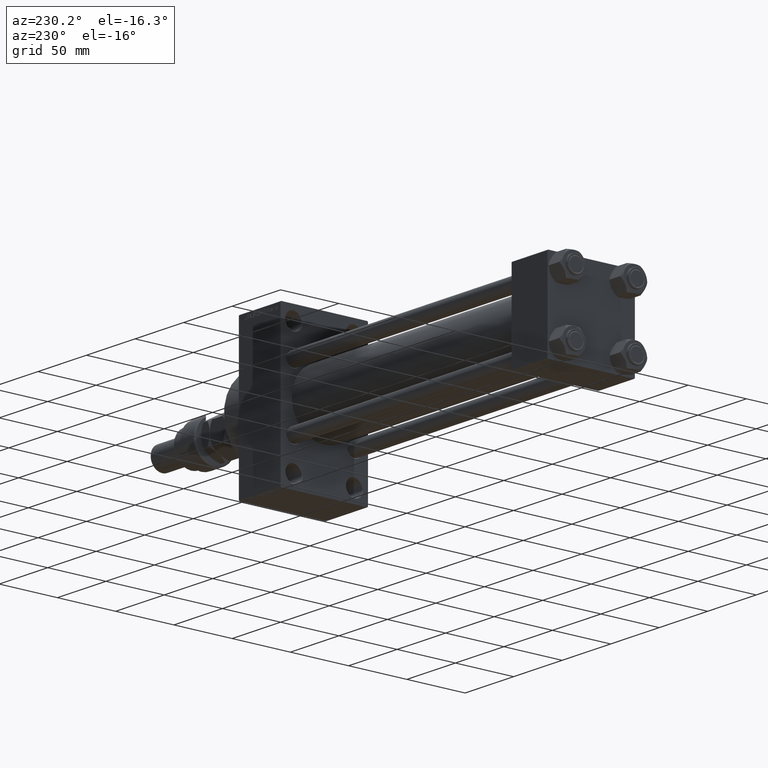
[diagram: clean part render]
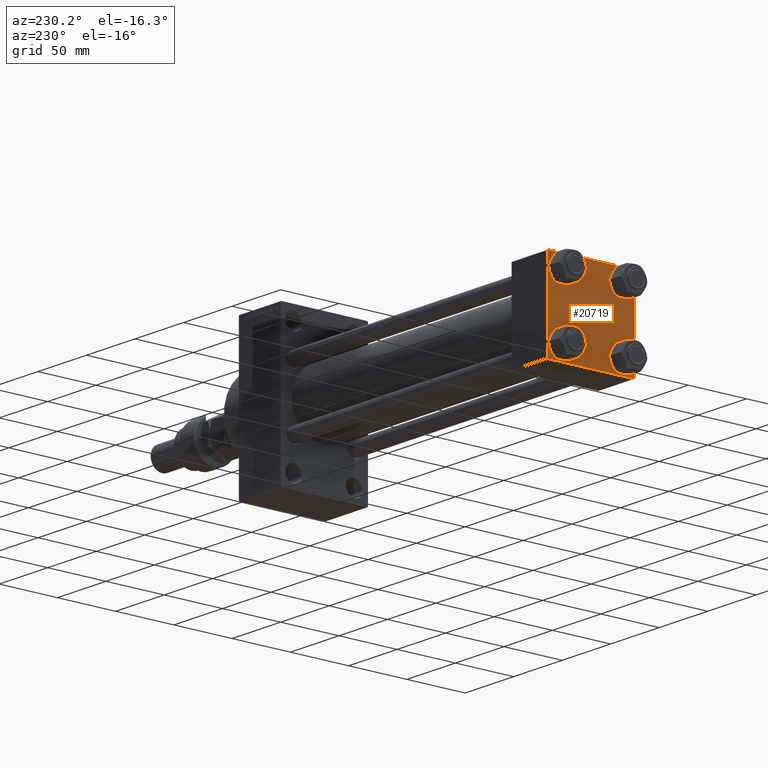
[diagram: same view with one face highlighted and labeled with its STEP entity id]
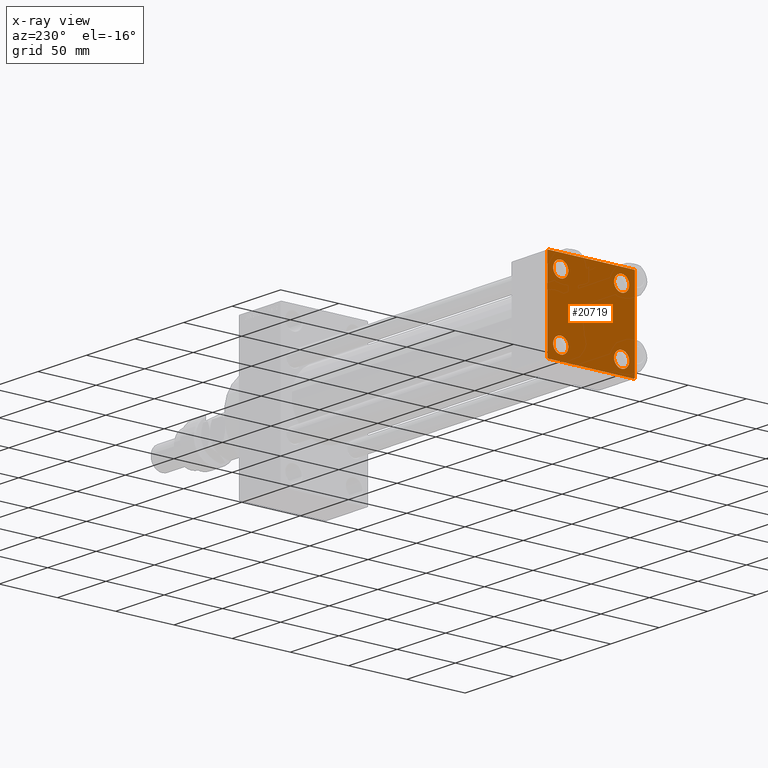
[diagram: x-ray of the same camera — body ghosted, the highlighted face saturated]
A machine part, auxiliary view. The second image highlights one B-rep face of the part: STEP entity #20719.
The next image is the same camera in x-ray: the body ghosted, the highlighted face saturated — about 0% of this face is hidden behind the body in this view.
In plain terms, the highlighted planar face has unit normal (-1, 0, 0).
Its self-contained STEP definition (entity closure, byte-faithful):
#3 = DIRECTION ( 'NONE',  ( 0.000000000000000000, -0.7071067811865524577, 0.7071067811865426878 ) ) ;
#760 = CARTESIAN_POINT ( 'NONE',  ( 0.000000000000000000, -26.14999999999999147, -32.65000000000002700 ) ) ;
#833 = DIRECTION ( 'NONE',  ( 0.000000000000000000, 0.000000000000000000, 1.000000000000000000 ) ) ;
#1168 = DIRECTION ( 'NONE',  ( -0.000000000000000000, 0.7071067811865474617, 0.7071067811865474617 ) ) ;
#1188 = ORIENTED_EDGE ( 'NONE', *, *, #35992, .T. ) ;
#1447 = EDGE_CURVE ( 'NONE', #2928, #15616, #47173, .T. ) ;
#1555 = VERTEX_POINT ( 'NONE', #45803 ) ;
#1869 = CARTESIAN_POINT ( 'NONE',  ( 0.000000000000000000, 37.49999999999999289, -36.99999999999998579 ) ) ;
#2062 = CARTESIAN_POINT ( 'NONE',  ( 0.000000000000000000, -37.00000000000000711, 37.49999999999999289 ) ) ;
#2156 = EDGE_CURVE ( 'NONE', #44052, #37936, #17444, .T. ) ;
#2587 = CARTESIAN_POINT ( 'NONE',  ( 0.000000000000000000, 26.14999999999999858, -26.15000000000000213 ) ) ;
#2928 = VERTEX_POINT ( 'NONE', #10945 ) ;
#2999 = AXIS2_PLACEMENT_3D ( 'NONE', #5746, #21251, #32928 ) ;
#4379 = DIRECTION ( 'NONE',  ( -0.000000000000000000, 0.000000000000000000, 1.000000000000000000 ) ) ;
#4625 = FACE_BOUND ( 'NONE', #21005, .T. ) ;
#5040 = EDGE_CURVE ( 'NONE', #27377, #45263, #15010, .T. ) ;
#5140 = CARTESIAN_POINT ( 'NONE',  ( 0.000000000000000000, 37.24999999999998579, -37.24999999999998579 ) ) ;
#5565 = CIRCLE ( 'NONE', #28300, 6.500000000000015987 ) ;
#5746 = CARTESIAN_POINT ( 'NONE',  ( 0.000000000000000000, 26.14999999999999858, 26.15000000000000213 ) ) ;
#5766 = DIRECTION ( 'NONE',  ( 0.000000000000000000, 0.7071067811865474617, -0.7071067811865474617 ) ) ;
#5832 = LINE ( 'NONE', #9648, #36487 ) ;
#6659 = DIRECTION ( 'NONE',  ( 0.000000000000000000, 0.000000000000000000, 1.000000000000000000 ) ) ;
#7253 = ORIENTED_EDGE ( 'NONE', *, *, #33953, .T. ) ;
#7275 = CARTESIAN_POINT ( 'NONE',  ( 0.000000000000000000, -26.14999999999999147, 26.15000000000000924 ) ) ;
#7893 = LINE ( 'NONE', #15275, #16116 ) ;
#8920 = DIRECTION ( 'NONE',  ( 1.000000000000000000, -0.000000000000000000, 0.000000000000000000 ) ) ;
#8963 = ORIENTED_EDGE ( 'NONE', *, *, #44599, .T. ) ;
#9119 = ORIENTED_EDGE ( 'NONE', *, *, #25387, .F. ) ;
#9648 = CARTESIAN_POINT ( 'NONE',  ( 0.000000000000000000, 37.49999999999999289, 37.50000000000000000 ) ) ;
#10391 = DIRECTION ( 'NONE',  ( 1.000000000000000000, -0.000000000000000000, 0.000000000000000000 ) ) ;
#10556 = CARTESIAN_POINT ( 'NONE',  ( 0.000000000000000000, -26.14999999999999147, 19.64999999999999147 ) ) ;
#10945 = CARTESIAN_POINT ( 'NONE',  ( 0.000000000000000000, 37.49999999999999289, 37.00000000000000000 ) ) ;
#11727 = ORIENTED_EDGE ( 'NONE', *, *, #19179, .T. ) ;
#11774 = EDGE_LOOP ( 'NONE', ( #32607, #24435, #7253, #20339, #22317, #23092, #9119, #8963 ) ) ;
#11967 = LINE ( 'NONE', #27444, #49172 ) ;
#12018 = CARTESIAN_POINT ( 'NONE',  ( 0.000000000000000000, 0.000000000000000000, 0.000000000000000000 ) ) ;
#12381 = CARTESIAN_POINT ( 'NONE',  ( 0.000000000000000000, 37.49999999999999289, 37.50000000000000000 ) ) ;
#12749 = CARTESIAN_POINT ( 'NONE',  ( 0.000000000000000000, 26.14999999999999858, 26.15000000000000213 ) ) ;
#13652 = AXIS2_PLACEMENT_3D ( 'NONE', #16187, #35479, #23559 ) ;
#13657 = LINE ( 'NONE', #40580, #47601 ) ;
#13789 = CARTESIAN_POINT ( 'NONE',  ( 0.000000000000000000, -26.14999999999999147, -26.15000000000000924 ) ) ;
#14006 = LINE ( 'NONE', #33051, #19758 ) ;
#14614 = EDGE_CURVE ( 'NONE', #43880, #34077, #34690, .T. ) ;
#15010 = CIRCLE ( 'NONE', #39341, 6.500000000000015987 ) ;
#15275 = CARTESIAN_POINT ( 'NONE',  ( 0.000000000000000000, -37.24999999999975842, -37.25000000000027001 ) ) ;
#15586 = FACE_BOUND ( 'NONE', #47095, .T. ) ;
#15616 = VERTEX_POINT ( 'NONE', #1869 ) ;
#16116 = VECTOR ( 'NONE', #3, 1000.000000000000000 ) ;
#16187 = CARTESIAN_POINT ( 'NONE',  ( 0.000000000000000000, -26.14999999999999147, 26.15000000000000924 ) ) ;
#16969 = VERTEX_POINT ( 'NONE', #31656 ) ;
#17444 = LINE ( 'NONE', #21248, #18957 ) ;
#17736 = AXIS2_PLACEMENT_3D ( 'NONE', #12018, #46573, #4379 ) ;
#17877 = ORIENTED_EDGE ( 'NONE', *, *, #48349, .T. ) ;
#18195 = DIRECTION ( 'NONE',  ( 0.000000000000000000, 0.000000000000000000, 1.000000000000000000 ) ) ;
#18364 = CARTESIAN_POINT ( 'NONE',  ( 0.000000000000000000, -26.14999999999999147, 32.65000000000003411 ) ) ;
#18957 = VECTOR ( 'NONE', #1168, 1000.000000000000114 ) ;
#19179 = EDGE_CURVE ( 'NONE', #48364, #36407, #39613, .T. ) ;
#19389 = FACE_BOUND ( 'NONE', #49061, .T. ) ;
#19758 = VECTOR ( 'NONE', #32546, 1000.000000000000000 ) ;
#20339 = ORIENTED_EDGE ( 'NONE', *, *, #20984, .T. ) ;
#20370 = FACE_OUTER_BOUND ( 'NONE', #11774, .T. ) ;
#20719 = ADVANCED_FACE ( 'NONE', ( #19389, #23946, #15586, #4625, #20370 ), #31797, .T. ) ;
#20830 = DIRECTION ( 'NONE',  ( 0.000000000000000000, 9.251858538542971581E-17, -1.000000000000000000 ) ) ;
#20911 = DIRECTION ( 'NONE',  ( 1.000000000000000000, -0.000000000000000000, 0.000000000000000000 ) ) ;
#20984 = EDGE_CURVE ( 'NONE', #16969, #35801, #7893, .T. ) ;
#21005 = EDGE_LOOP ( 'NONE', ( #48243, #1188 ) ) ;
#21248 = CARTESIAN_POINT ( 'NONE',  ( -0.000000000000000000, -37.25000000000000000, 37.25000000000000000 ) ) ;
#21251 = DIRECTION ( 'NONE',  ( 1.000000000000000000, -0.000000000000000000, 0.000000000000000000 ) ) ;
#21615 = DIRECTION ( 'NONE',  ( 0.000000000000000000, 0.000000000000000000, 1.000000000000000000 ) ) ;
#21641 = ORIENTED_EDGE ( 'NONE', *, *, #37382, .T. ) ;
#22075 = EDGE_CURVE ( 'NONE', #15616, #28299, #35880, .T. ) ;
#22089 = DIRECTION ( 'NONE',  ( 0.000000000000000000, 0.000000000000000000, 1.000000000000000000 ) ) ;
#22317 = ORIENTED_EDGE ( 'NONE', *, *, #42498, .F. ) ;
#22340 = CARTESIAN_POINT ( 'NONE',  ( 0.000000000000000000, -26.14999999999999147, -26.15000000000000924 ) ) ;
#22771 = DIRECTION ( 'NONE',  ( 1.000000000000000000, -0.000000000000000000, 0.000000000000000000 ) ) ;
#23092 = ORIENTED_EDGE ( 'NONE', *, *, #2156, .T. ) ;
#23225 = CARTESIAN_POINT ( 'NONE',  ( 0.000000000000000000, -37.50000000000000711, 36.99999999999999289 ) ) ;
#23559 = DIRECTION ( 'NONE',  ( 0.000000000000000000, 0.000000000000000000, 1.000000000000000000 ) ) ;
#23824 = AXIS2_PLACEMENT_3D ( 'NONE', #7275, #22771, #18195 ) ;
#23946 = FACE_BOUND ( 'NONE', #39337, .T. ) ;
#24137 = VERTEX_POINT ( 'NONE', #33822 ) ;
#24435 = ORIENTED_EDGE ( 'NONE', *, *, #22075, .T. ) ;
#24707 = DIRECTION ( 'NONE',  ( 1.000000000000000000, -0.000000000000000000, 0.000000000000000000 ) ) ;
#25235 = VERTEX_POINT ( 'NONE', #760 ) ;
#25387 = EDGE_CURVE ( 'NONE', #1555, #37936, #5832, .T. ) ;
#25436 = EDGE_CURVE ( 'NONE', #25235, #24137, #30832, .T. ) ;
#25968 = AXIS2_PLACEMENT_3D ( 'NONE', #22340, #10391, #22089 ) ;
#26865 = CARTESIAN_POINT ( 'NONE',  ( 0.000000000000000000, 26.14999999999999858, 32.65000000000002700 ) ) ;
#27126 = AXIS2_PLACEMENT_3D ( 'NONE', #12749, #8920, #21615 ) ;
#27377 = VERTEX_POINT ( 'NONE', #27578 ) ;
#27444 = CARTESIAN_POINT ( 'NONE',  ( 0.000000000000000000, -37.50000000000000711, 37.49999999999999289 ) ) ;
#27578 = CARTESIAN_POINT ( 'NONE',  ( 0.000000000000000000, 26.14999999999999858, -19.64999999999998792 ) ) ;
#27764 = CARTESIAN_POINT ( 'NONE',  ( 0.000000000000000000, 26.14999999999999858, -26.15000000000000213 ) ) ;
#28299 = VERTEX_POINT ( 'NONE', #40902 ) ;
#28300 = AXIS2_PLACEMENT_3D ( 'NONE', #2587, #34102, #6659 ) ;
#28499 = DIRECTION ( 'NONE',  ( 0.000000000000000000, 0.000000000000000000, 1.000000000000000000 ) ) ;
#28751 = DIRECTION ( 'NONE',  ( -0.000000000000000000, -0.7071067811865474617, -0.7071067811865474617 ) ) ;
#29735 = CARTESIAN_POINT ( 'NONE',  ( 0.000000000000000000, 26.14999999999999858, 19.64999999999998437 ) ) ;
#29975 = VECTOR ( 'NONE', #28751, 1000.000000000000114 ) ;
#30249 = VECTOR ( 'NONE', #39566, 1000.000000000000000 ) ;
#30832 = CIRCLE ( 'NONE', #25968, 6.500000000000015987 ) ;
#31656 = CARTESIAN_POINT ( 'NONE',  ( 0.000000000000000000, -37.00000000000002132, -37.50000000000000711 ) ) ;
#31797 = PLANE ( 'NONE',  #17736 ) ;
#32546 = DIRECTION ( 'NONE',  ( 0.000000000000000000, -1.000000000000000000, -9.251858538542972814E-17 ) ) ;
#32607 = ORIENTED_EDGE ( 'NONE', *, *, #1447, .T. ) ;
#32824 = CARTESIAN_POINT ( 'NONE',  ( 0.000000000000000000, 26.14999999999999858, -32.65000000000001990 ) ) ;
#32928 = DIRECTION ( 'NONE',  ( 0.000000000000000000, 0.000000000000000000, 1.000000000000000000 ) ) ;
#33051 = CARTESIAN_POINT ( 'NONE',  ( 0.000000000000000000, 37.49999999999999289, -37.50000000000000000 ) ) ;
#33822 = CARTESIAN_POINT ( 'NONE',  ( 0.000000000000000000, -26.14999999999999147, -19.64999999999999503 ) ) ;
#33953 = EDGE_CURVE ( 'NONE', #28299, #16969, #14006, .T. ) ;
#34077 = VERTEX_POINT ( 'NONE', #29735 ) ;
#34102 = DIRECTION ( 'NONE',  ( 1.000000000000000000, -0.000000000000000000, 0.000000000000000000 ) ) ;
#34690 = CIRCLE ( 'NONE', #2999, 6.500000000000023093 ) ;
#35423 = AXIS2_PLACEMENT_3D ( 'NONE', #13789, #24707, #28499 ) ;
#35479 = DIRECTION ( 'NONE',  ( 1.000000000000000000, -0.000000000000000000, 0.000000000000000000 ) ) ;
#35801 = VERTEX_POINT ( 'NONE', #50115 ) ;
#35880 = LINE ( 'NONE', #5140, #29975 ) ;
#35992 = EDGE_CURVE ( 'NONE', #34077, #43880, #36041, .T. ) ;
#36041 = CIRCLE ( 'NONE', #27126, 6.500000000000023093 ) ;
#36407 = VERTEX_POINT ( 'NONE', #10556 ) ;
#36487 = VECTOR ( 'NONE', #48006, 1000.000000000000000 ) ;
#37382 = EDGE_CURVE ( 'NONE', #36407, #48364, #46580, .T. ) ;
#37903 = ORIENTED_EDGE ( 'NONE', *, *, #43535, .T. ) ;
#37936 = VERTEX_POINT ( 'NONE', #2062 ) ;
#38677 = CIRCLE ( 'NONE', #35423, 6.500000000000015987 ) ;
#39337 = EDGE_LOOP ( 'NONE', ( #37903, #39461 ) ) ;
#39341 = AXIS2_PLACEMENT_3D ( 'NONE', #27764, #20911, #833 ) ;
#39461 = ORIENTED_EDGE ( 'NONE', *, *, #25436, .T. ) ;
#39566 = DIRECTION ( 'NONE',  ( 0.000000000000000000, 0.000000000000000000, -1.000000000000000000 ) ) ;
#39613 = CIRCLE ( 'NONE', #13652, 6.500000000000023093 ) ;
#40580 = CARTESIAN_POINT ( 'NONE',  ( 0.000000000000000000, 37.24999999999999289, 37.24999999999999289 ) ) ;
#40902 = CARTESIAN_POINT ( 'NONE',  ( 0.000000000000000000, 36.99999999999997868, -37.50000000000000000 ) ) ;
#42498 = EDGE_CURVE ( 'NONE', #44052, #35801, #11967, .T. ) ;
#43535 = EDGE_CURVE ( 'NONE', #24137, #25235, #38677, .T. ) ;
#43880 = VERTEX_POINT ( 'NONE', #26865 ) ;
#44052 = VERTEX_POINT ( 'NONE', #23225 ) ;
#44513 = ORIENTED_EDGE ( 'NONE', *, *, #5040, .T. ) ;
#44599 = EDGE_CURVE ( 'NONE', #1555, #2928, #13657, .T. ) ;
#45263 = VERTEX_POINT ( 'NONE', #32824 ) ;
#45803 = CARTESIAN_POINT ( 'NONE',  ( 0.000000000000000000, 36.99999999999999289, 37.50000000000000000 ) ) ;
#46573 = DIRECTION ( 'NONE',  ( -1.000000000000000000, 0.000000000000000000, -0.000000000000000000 ) ) ;
#46580 = CIRCLE ( 'NONE', #23824, 6.500000000000023093 ) ;
#47095 = EDGE_LOOP ( 'NONE', ( #44513, #17877 ) ) ;
#47173 = LINE ( 'NONE', #12381, #30249 ) ;
#47601 = VECTOR ( 'NONE', #5766, 1000.000000000000114 ) ;
#48006 = DIRECTION ( 'NONE',  ( 0.000000000000000000, -1.000000000000000000, -9.251858538542971581E-17 ) ) ;
#48243 = ORIENTED_EDGE ( 'NONE', *, *, #14614, .T. ) ;
#48349 = EDGE_CURVE ( 'NONE', #45263, #27377, #5565, .T. ) ;
#48364 = VERTEX_POINT ( 'NONE', #18364 ) ;
#49061 = EDGE_LOOP ( 'NONE', ( #11727, #21641 ) ) ;
#49172 = VECTOR ( 'NONE', #20830, 1000.000000000000000 ) ;
#50115 = CARTESIAN_POINT ( 'NONE',  ( 0.000000000000000000, -37.50000000000000000, -37.00000000000003553 ) ) ;